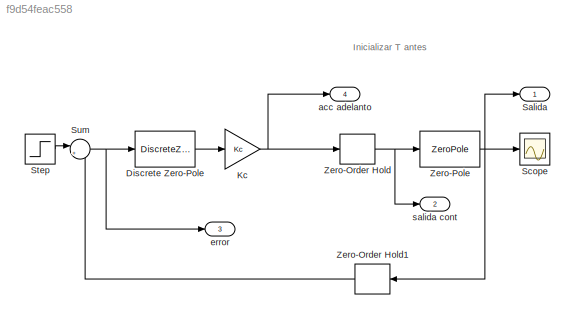
MODEL slx_f9d54feac558
KIND model
BLOCK [DiscreteZeroPole] Discrete Zero-Pole
  Gain = 1
  Poles = [pc]
  SampleTime = -1
  Zeros = [cc]
BLOCK [Gain] Kc
  Gain = Kc
  OutDataTypeStr = Inherit: Inherit via internal rule
  ParamDataTypeStr = Inherit: Inherit via internal rule
  SaturateOnIntegerOverflow = off
BLOCK [Outport] Salida
  IconDisplay = Port number
BLOCK [Scope] Scope
  DataFormat = StructureWithTime
  Floating = off
  LimitDataPoints = off
  NumInputPorts = 1
  Ports = [1]
  SampleTime = 0
  ShowLegends = off
  YMax = 1.03
  YMin = 0.96
  ZoomMode = xonly
BLOCK [Step] Step
  SampleTime = T
  Time = 0
BLOCK [Sum] Sum
  IconShape = round
  InputSameDT = off
  Inputs = |+-
  OutDataTypeStr = Inherit: Inherit via internal rule
  Ports = [2, 1]
  SaturateOnIntegerOverflow = off
BLOCK [ZeroOrderHold] Zero-Order Hold
  SampleTime = T
BLOCK [ZeroOrderHold] Zero-Order Hold1
  SampleTime = T
BLOCK [ZeroPole] Zero-Pole
  Gain = [K]
  Poles = [p1 p2]
  Zeros = [c]
BLOCK [Outport] acc adelanto
  IconDisplay = Port number
  Port = 4
BLOCK [Outport] error
  IconDisplay = Port number
  Port = 3
BLOCK [Outport] salida cont
  IconDisplay = Port number
  Port = 2
ANNOTATION (root): Inicializar T antes
LINE Discrete Zero-Pole:1 -> Kc:1
NET Kc:1 -> Zero-Order Hold:1, acc adelanto:1
LINE Step:1 -> Sum:1
NET Sum:1 -> Discrete Zero-Pole:1, error:1
LINE Zero-Order Hold1:1 -> Sum:2
NET Zero-Order Hold:1 -> Zero-Pole:1, salida cont:1
NET Zero-Pole:1 -> Salida:1, Scope:1, Zero-Order Hold1:1
note: NET lines group one-source signal fan-out (src -> all destinations, sorted); 1:1 wires keep LINE
